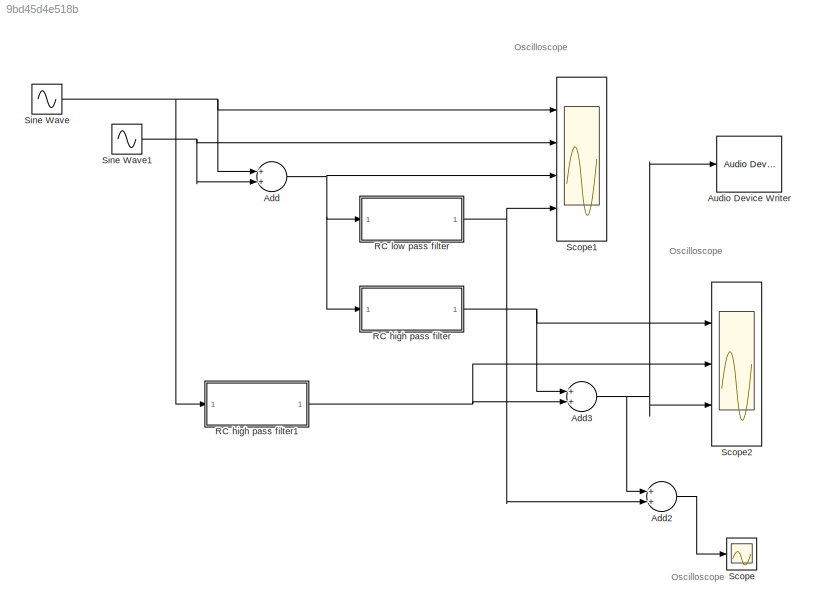
MODEL slx_9bd45d4e518b
KIND model
CONFIG AbsTol = auto
CONFIG EnableMultiTasking = off
CONFIG FixedStep = auto
CONFIG MaxStep = auto
CONFIG MinStep = auto
CONFIG RelTol = 1e-3
CONFIG SampleTimeConstraint = Unconstrained
CONFIG Solver = VariableStepAuto
CONFIG SolverName = VariableStepAuto
CONFIG StartTime = 0.0
CONFIG StopTime = 10.0
BLOCK [Sum] Add
  InputSameDT = off
  OutDataTypeStr = Inherit: Inherit via internal rule
  Ports = [2, 1]
  SaturateOnIntegerOverflow = off
BLOCK [Sum] Add2
  InputSameDT = off
  OutDataTypeStr = Inherit: Inherit via internal rule
  Ports = [2, 1]
  SaturateOnIntegerOverflow = off
BLOCK [Sum] Add3
  InputSameDT = off
  OutDataTypeStr = Inherit: Inherit via internal rule
  Ports = [2, 1]
  SaturateOnIntegerOverflow = off
BLOCK [Reference] Audio Device Writer  REF=dspsnks4/Audio Device
Writer
  Ports = [1]
  SourceBlock = dspsnks4/Audio Device\nWriter
  SourceProductBaseCode = DS
  SourceProductName = DSP System Toolbox
  SourceType = Audio Device Writer
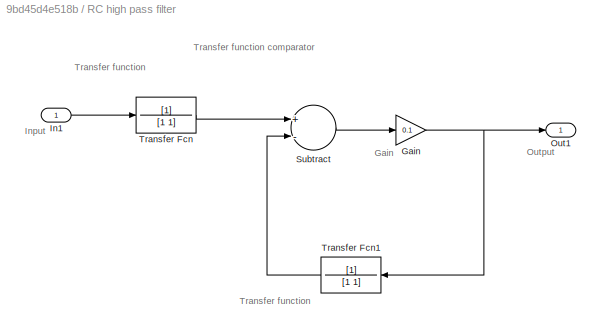
BLOCK [SubSystem] RC high pass filter
  Ports = [1, 1]
  RequestExecContextInheritance = off
BLOCK [Gain] RC high pass filter/Gain
  Gain = 0.1
  OutDataTypeStr = Inherit: Inherit via internal rule
  ParamDataTypeStr = Inherit: Inherit via internal rule
  SaturateOnIntegerOverflow = off
BLOCK [Inport] RC high pass filter/In1
  IconDisplay = Port number
BLOCK [Outport] RC high pass filter/Out1
  IconDisplay = Port number
BLOCK [Sum] RC high pass filter/Subtract
  InputSameDT = off
  Inputs = +-
  OutDataTypeStr = Inherit: Inherit via internal rule
  Ports = [2, 1]
  SaturateOnIntegerOverflow = off
BLOCK [TransferFcn] RC high pass filter/Transfer Fcn
  Denominator = [1 1]
BLOCK [TransferFcn] RC high pass filter/Transfer Fcn1
  Denominator = [1 1]
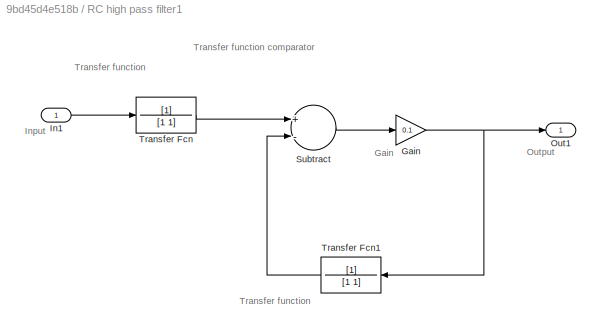
BLOCK [SubSystem] RC high pass filter1
  Ports = [1, 1]
  RequestExecContextInheritance = off
BLOCK [Gain] RC high pass filter1/Gain
  Gain = 0.1
  OutDataTypeStr = Inherit: Inherit via internal rule
  ParamDataTypeStr = Inherit: Inherit via internal rule
  SaturateOnIntegerOverflow = off
BLOCK [Inport] RC high pass filter1/In1
  IconDisplay = Port number
BLOCK [Outport] RC high pass filter1/Out1
  IconDisplay = Port number
BLOCK [Sum] RC high pass filter1/Subtract
  InputSameDT = off
  Inputs = +-
  OutDataTypeStr = Inherit: Inherit via internal rule
  Ports = [2, 1]
  SaturateOnIntegerOverflow = off
BLOCK [TransferFcn] RC high pass filter1/Transfer Fcn
  Denominator = [1 1]
BLOCK [TransferFcn] RC high pass filter1/Transfer Fcn1
  Denominator = [1 1]
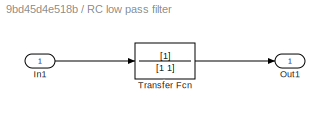
BLOCK [SubSystem] RC low pass filter
  Ports = [1, 1]
  RequestExecContextInheritance = off
BLOCK [Inport] RC low pass filter/In1
  IconDisplay = Port number
BLOCK [Outport] RC low pass filter/Out1
  IconDisplay = Port number
BLOCK [TransferFcn] RC low pass filter/Transfer Fcn
  Denominator = [1 1]
BLOCK [Scope] Scope
  Floating = off
  NumInputPorts = 1
  Ports = [1]
  ScopeSpecificationString = Simulink.scopes.TimeScopeBlockCfg('CurrentConfiguration', extmgr.ConfigurationSet(extmgr.Configuration('Core','General UI',true),extmgr.Configuration('Core','Source UI',true),extmgr.Configuration('Sources','WiredSimulink',true),extmgr.Configuration('Visuals','Time Domain',true),extmgr.Configuration('Tools','Plot Navigation',true),extmgr.Configuration('Tools','Measurements',true,'Version','2018a'))...<+19ch>
BLOCK [Scope] Scope1
  Floating = off
  NumInputPorts = 4
  Ports = [4]
  ScopeSpecificationString = Simulink.scopes.TimeScopeBlockCfg('CurrentConfiguration', extmgr.ConfigurationSet(extmgr.Configuration('Core','General UI',true),extmgr.Configuration('Core','Source UI',true),extmgr.Configuration('Sources','WiredSimulink',true,'DataLoggingVariableName','ScopeData1'),extmgr.Configuration('Visuals','Time Domain',true),extmgr.Configuration('Tools','Plot Navigation',true),extmgr.Configuration('Tools',...<+58ch>
BLOCK [Scope] Scope2
  Floating = off
  NumInputPorts = 3
  Ports = [3]
  ScopeSpecificationString = Simulink.scopes.TimeScopeBlockCfg('CurrentConfiguration', extmgr.ConfigurationSet(extmgr.Configuration('Core','General UI',true),extmgr.Configuration('Core','Source UI',true),extmgr.Configuration('Sources','WiredSimulink',true,'DataLoggingVariableName','ScopeData2'),extmgr.Configuration('Visuals','Time Domain',true),extmgr.Configuration('Tools','Plot Navigation',true),extmgr.Configuration('Tools',...<+58ch>
BLOCK [Sin] Sine Wave
  Amplitude = 5
  Frequency = 1*2*pi
  Ports = [0, 1]
  SampleTime = 0
BLOCK [Sin] Sine Wave1
  Amplitude = 5
  Frequency = 5 * 2* pi
  Ports = [0, 1]
  SampleTime = 0
ANNOTATION (root): Oscilloscope
ANNOTATION RC high pass filter: Transfer function comparator
ANNOTATION RC high pass filter: Gain
ANNOTATION RC high pass filter: Input
ANNOTATION RC high pass filter: Output
ANNOTATION RC high pass filter: Transfer function
ANNOTATION RC high pass filter1: Transfer function comparator
ANNOTATION RC high pass filter1: Gain
ANNOTATION RC high pass filter1: Input
ANNOTATION RC high pass filter1: Output
ANNOTATION RC high pass filter1: Transfer function
LINE Add2:1 -> Scope:1
NET Add3:1 -> Add2:1, Audio Device Writer:1, Scope2:3
NET Add:1 -> RC high pass filter:1, RC low pass filter:1, Scope1:3
NET RC high pass filter/Gain:1 -> RC high pass filter/Out1:1, RC high pass filter/Transfer Fcn1:1
LINE RC high pass filter/In1:1 -> RC high pass filter/Transfer Fcn:1
LINE RC high pass filter/Subtract:1 -> RC high pass filter/Gain:1
LINE RC high pass filter/Transfer Fcn1:1 -> RC high pass filter/Subtract:2
LINE RC high pass filter/Transfer Fcn:1 -> RC high pass filter/Subtract:1
NET RC high pass filter1/Gain:1 -> RC high pass filter1/Out1:1, RC high pass filter1/Transfer Fcn1:1
LINE RC high pass filter1/In1:1 -> RC high pass filter1/Transfer Fcn:1
LINE RC high pass filter1/Subtract:1 -> RC high pass filter1/Gain:1
LINE RC high pass filter1/Transfer Fcn1:1 -> RC high pass filter1/Subtract:2
LINE RC high pass filter1/Transfer Fcn:1 -> RC high pass filter1/Subtract:1
NET RC high pass filter1:1 -> Add3:2, Scope2:2
NET RC high pass filter:1 -> Add3:1, Scope2:1
LINE RC low pass filter/In1:1 -> RC low pass filter/Transfer Fcn:1
LINE RC low pass filter/Transfer Fcn:1 -> RC low pass filter/Out1:1
NET RC low pass filter:1 -> Add2:2, Scope1:4
NET Sine Wave1:1 -> Add:2, Scope1:2
NET Sine Wave:1 -> Add:1, RC high pass filter1:1, Scope1:1
note: NET lines group one-source signal fan-out (src -> all destinations, sorted); 1:1 wires keep LINE
